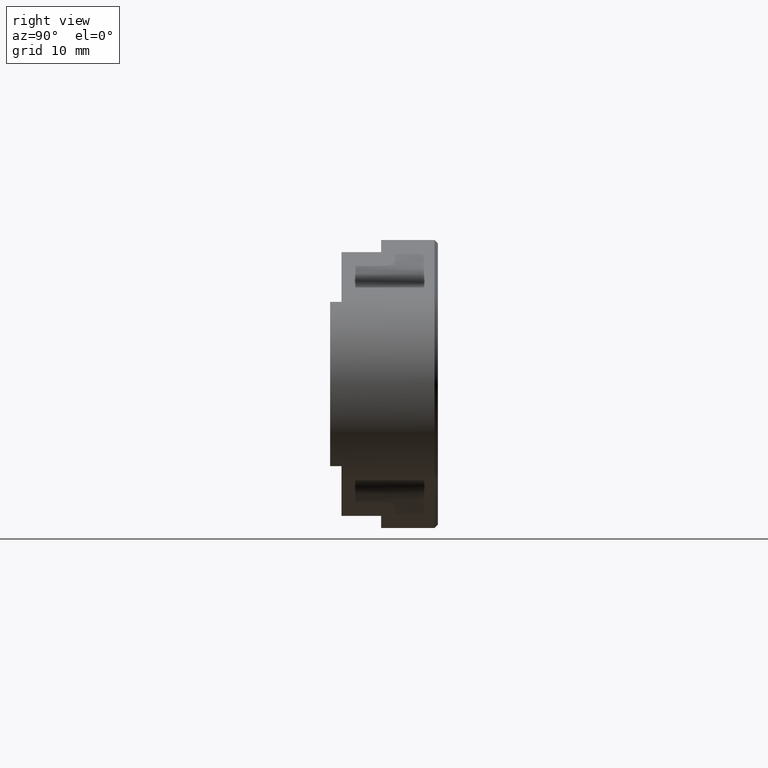
[diagram: clean part render]
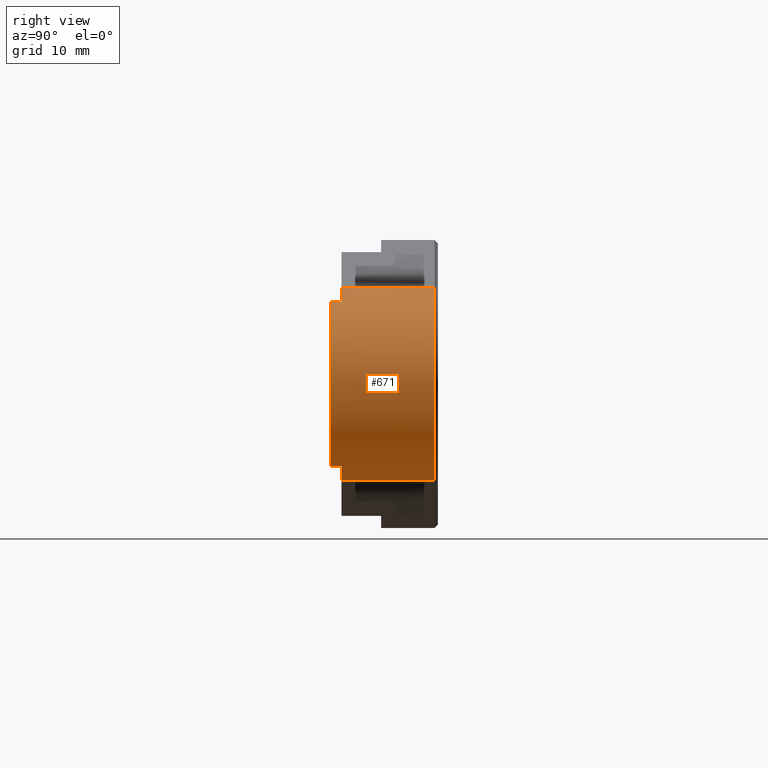
[diagram: same view with one face highlighted and labeled with its STEP entity id]
A machine part, right view. The second image highlights one B-rep face of the part: STEP entity #671.
In plain terms, the highlighted cylindrical surface (partial cylindrical patch) has radius 8.5 mm, axis along (-0, -1, -0).
Its self-contained STEP definition (entity closure, byte-faithful):
#3 = EDGE_CURVE ( 'NONE', #719, #439, #951, .T. ) ;
#21 = ORIENTED_EDGE ( 'NONE', *, *, #730, .T. ) ;
#42 = DIRECTION ( 'NONE',  ( 0.000000000000000000, 1.000000000000000000, 0.000000000000000000 ) ) ;
#50 = LINE ( 'NONE', #1183, #972 ) ;
#53 = EDGE_CURVE ( 'NONE', #640, #1440, #50, .T. ) ;
#74 = CARTESIAN_POINT ( 'NONE',  ( -27.04457426940821207, 9.799999999999997158, -26.69062565510759555 ) ) ;
#176 = ORIENTED_EDGE ( 'NONE', *, *, #238, .T. ) ;
#190 = CARTESIAN_POINT ( 'NONE',  ( -22.59457426940821634, 0.5999999999999998668, -33.93269027785158443 ) ) ;
#192 = CARTESIAN_POINT ( 'NONE',  ( -27.04457426940821207, 1.599999999999998979, -26.69062565510759555 ) ) ;
#202 = FACE_OUTER_BOUND ( 'NONE', #1112, .T. ) ;
#238 = EDGE_CURVE ( 'NONE', #712, #719, #733, .T. ) ;
#281 = VERTEX_POINT ( 'NONE', #722 ) ;
#350 = ORIENTED_EDGE ( 'NONE', *, *, #3, .T. ) ;
#351 = DIRECTION ( 'NONE',  ( 0.000000000000000000, 0.000000000000000000, -1.000000000000000000 ) ) ;
#355 = VECTOR ( 'NONE', #417, 1000.000000000000000 ) ;
#366 = EDGE_CURVE ( 'NONE', #439, #656, #546, .T. ) ;
#382 = AXIS2_PLACEMENT_3D ( 'NONE', #492, #502, #746 ) ;
#414 = ORIENTED_EDGE ( 'NONE', *, *, #53, .T. ) ;
#417 = DIRECTION ( 'NONE',  ( -0.000000000000000000, -1.000000000000000000, -0.000000000000000000 ) ) ;
#425 = CARTESIAN_POINT ( 'NONE',  ( -28.30829174901889189, 9.800000000000006040, -18.28509068511750968 ) ) ;
#439 = VERTEX_POINT ( 'NONE', #1269 ) ;
#457 = ORIENTED_EDGE ( 'NONE', *, *, #604, .T. ) ;
#473 = VERTEX_POINT ( 'NONE', #425 ) ;
#483 = CARTESIAN_POINT ( 'NONE',  ( -28.30829174901908374, 1.599999999999998979, -18.28509068511752389 ) ) ;
#492 = CARTESIAN_POINT ( 'NONE',  ( -27.04457426940821207, 0.5999999999999998668, -26.69062565510759555 ) ) ;
#502 = DIRECTION ( 'NONE',  ( 0.000000000000000000, 1.000000000000000000, 0.000000000000000000 ) ) ;
#505 = CARTESIAN_POINT ( 'NONE',  ( -27.04457426940821207, 1.599999999999998979, -26.69062565510759555 ) ) ;
#546 = CIRCLE ( 'NONE', #382, 8.500000000000000000 ) ;
#582 = DIRECTION ( 'NONE',  ( -0.000000000000000000, -1.000000000000000000, -0.000000000000000000 ) ) ;
#588 = DIRECTION ( 'NONE',  ( 0.000000000000000000, 0.000000000000000000, -1.000000000000000000 ) ) ;
#598 = ORIENTED_EDGE ( 'NONE', *, *, #1203, .T. ) ;
#604 = EDGE_CURVE ( 'NONE', #473, #712, #816, .T. ) ;
#610 = DIRECTION ( 'NONE',  ( 0.000000000000000000, 0.000000000000000000, 1.000000000000000000 ) ) ;
#640 = VERTEX_POINT ( 'NONE', #1107 ) ;
#654 = AXIS2_PLACEMENT_3D ( 'NONE', #192, #1089, #610 ) ;
#656 = VERTEX_POINT ( 'NONE', #190 ) ;
#671 = ADVANCED_FACE ( 'NONE', ( #202 ), #832, .T. ) ;
#694 = EDGE_CURVE ( 'NONE', #656, #281, #1448, .T. ) ;
#697 = DIRECTION ( 'NONE',  ( -0.000000000000000000, -1.000000000000000000, -0.000000000000000000 ) ) ;
#712 = VERTEX_POINT ( 'NONE', #483 ) ;
#714 = CARTESIAN_POINT ( 'NONE',  ( -22.59457426940821634, 1.599999999999998979, -19.44856103236360312 ) ) ;
#719 = VERTEX_POINT ( 'NONE', #714 ) ;
#722 = CARTESIAN_POINT ( 'NONE',  ( -22.59457426940821634, 1.599999999999998979, -33.93269027785158443 ) ) ;
#727 = CARTESIAN_POINT ( 'NONE',  ( -22.59457426940821634, 10.09999999999999964, -33.93269027785158443 ) ) ;
#730 = EDGE_CURVE ( 'NONE', #1440, #473, #914, .T. ) ;
#733 = CIRCLE ( 'NONE', #654, 8.500000000000000000 ) ;
#746 = DIRECTION ( 'NONE',  ( 0.000000000000000000, 0.000000000000000000, 1.000000000000000000 ) ) ;
#758 = VECTOR ( 'NONE', #1460, 1000.000000000000000 ) ;
#779 = DIRECTION ( 'NONE',  ( 0.000000000000000000, 0.000000000000000000, 1.000000000000000000 ) ) ;
#816 = LINE ( 'NONE', #1543, #355 ) ;
#832 = CYLINDRICAL_SURFACE ( 'NONE', #1621, 8.500000000000000000 ) ;
#859 = AXIS2_PLACEMENT_3D ( 'NONE', #505, #1022, #779 ) ;
#914 = CIRCLE ( 'NONE', #1627, 8.500000000000000000 ) ;
#951 = LINE ( 'NONE', #1199, #758 ) ;
#953 = CARTESIAN_POINT ( 'NONE',  ( -27.04457426940821207, 10.09999999999999964, -26.69062565510759555 ) ) ;
#972 = VECTOR ( 'NONE', #42, 1000.000000000000000 ) ;
#1022 = DIRECTION ( 'NONE',  ( 0.000000000000000000, 1.000000000000000000, 0.000000000000000000 ) ) ;
#1089 = DIRECTION ( 'NONE',  ( 0.000000000000000000, 1.000000000000000000, 0.000000000000000000 ) ) ;
#1107 = CARTESIAN_POINT ( 'NONE',  ( -28.30893117806940396, 1.599999999999998979, -35.09606446622984066 ) ) ;
#1112 = EDGE_LOOP ( 'NONE', ( #1642, #598, #414, #21, #457, #176, #350, #1626 ) ) ;
#1183 = CARTESIAN_POINT ( 'NONE',  ( -28.30893117806940396, 10.09999999999999964, -35.09606446622984066 ) ) ;
#1199 = CARTESIAN_POINT ( 'NONE',  ( -22.59457426940821634, 10.09999999999999964, -19.44856103236360312 ) ) ;
#1203 = EDGE_CURVE ( 'NONE', #281, #640, #1572, .T. ) ;
#1269 = CARTESIAN_POINT ( 'NONE',  ( -22.59457426940821634, 0.5999999999999998668, -19.44856103236360312 ) ) ;
#1335 = DIRECTION ( 'NONE',  ( 0.000000000000000000, 1.000000000000000000, 0.000000000000000000 ) ) ;
#1413 = VECTOR ( 'NONE', #1335, 1000.000000000000000 ) ;
#1440 = VERTEX_POINT ( 'NONE', #1549 ) ;
#1448 = LINE ( 'NONE', #727, #1413 ) ;
#1460 = DIRECTION ( 'NONE',  ( -0.000000000000000000, -1.000000000000000000, -0.000000000000000000 ) ) ;
#1543 = CARTESIAN_POINT ( 'NONE',  ( -28.30829174901908374, 10.09999999999999964, -18.28509068511752389 ) ) ;
#1549 = CARTESIAN_POINT ( 'NONE',  ( -28.30893117806958870, 9.799999999999997158, -35.09606446622982645 ) ) ;
#1572 = CIRCLE ( 'NONE', #859, 8.500000000000000000 ) ;
#1621 = AXIS2_PLACEMENT_3D ( 'NONE', #953, #582, #351 ) ;
#1626 = ORIENTED_EDGE ( 'NONE', *, *, #366, .T. ) ;
#1627 = AXIS2_PLACEMENT_3D ( 'NONE', #74, #697, #588 ) ;
#1642 = ORIENTED_EDGE ( 'NONE', *, *, #694, .T. ) ;